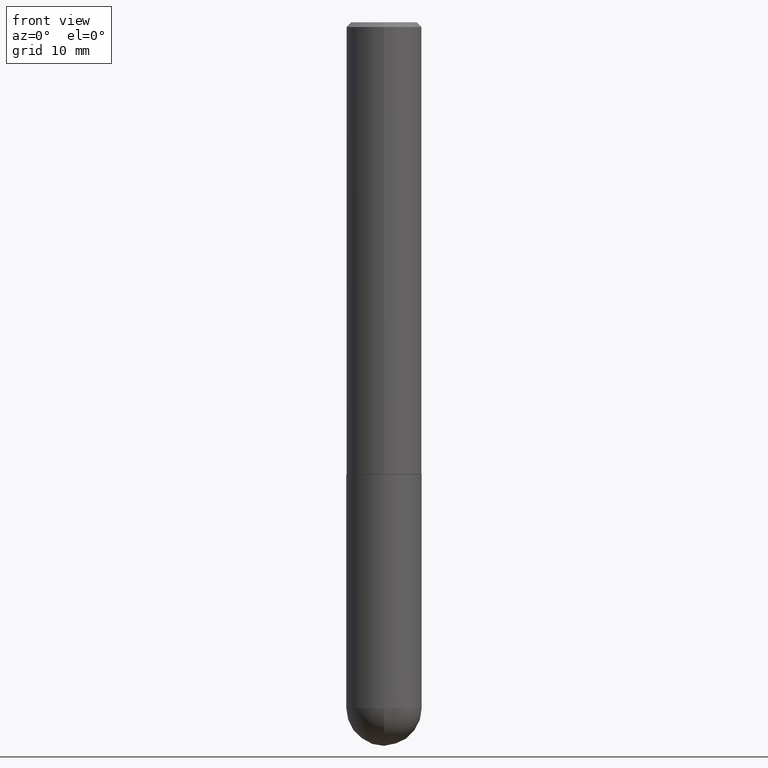
[diagram: clean part render]
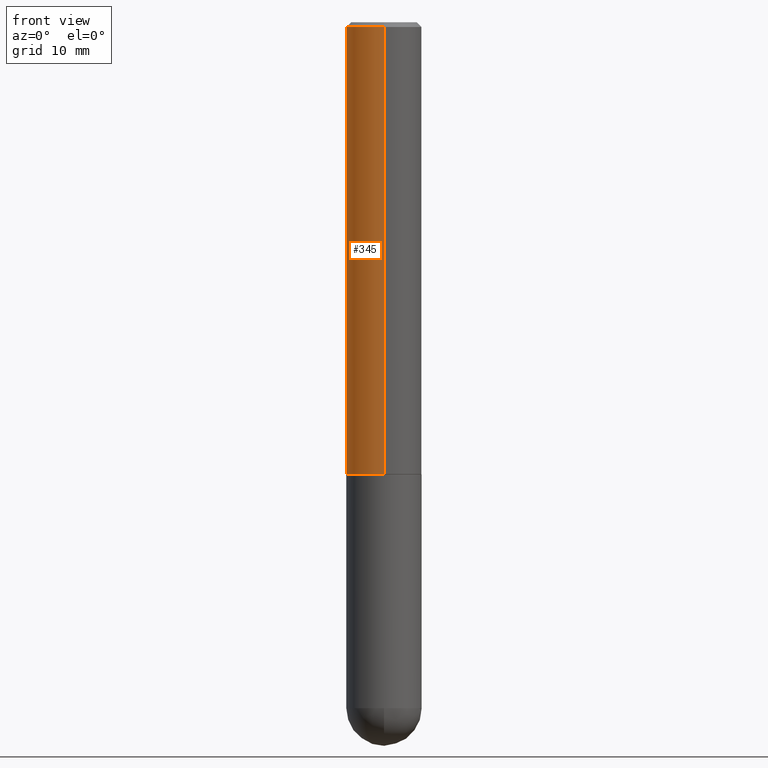
[diagram: same view with one face highlighted and labeled with its STEP entity id]
A machine part, front view. The second image highlights one B-rep face of the part: STEP entity #345.
In plain terms, the highlighted cylindrical surface (partial cylindrical patch) has radius 3.9688 mm, axis along (-0, 0, 1).
Its self-contained STEP definition (entity closure, byte-faithful):
#3 = DIRECTION ( 'NONE',  ( -6.982962677686265922E-15, -1.000000000000000000, 3.492105978576687648E-15 ) ) ;
#12 = AXIS2_PLACEMENT_3D ( 'NONE', #119, #138, #69 ) ;
#17 = CARTESIAN_POINT ( 'NONE',  ( 1.110223024625157329E-15, 0.1562500000000001388, -5.456415591526079257E-16 ) ) ;
#29 = CIRCLE ( 'NONE', #335, 0.1562500000000000000 ) ;
#49 = EDGE_CURVE ( 'NONE', #97, #223, #273, .T. ) ;
#55 = ORIENTED_EDGE ( 'NONE', *, *, #49, .T. ) ;
#56 = DIRECTION ( 'NONE',  ( -2.445032622590504256E-29, 3.492105978576687648E-15, 1.000000000000000000 ) ) ;
#63 = VERTEX_POINT ( 'NONE', #406 ) ;
#64 = EDGE_CURVE ( 'NONE', #369, #97, #198, .T. ) ;
#67 = CARTESIAN_POINT ( 'NONE',  ( 0.000000000000000000, 0.000000000000000000, 0.000000000000000000 ) ) ;
#69 = DIRECTION ( 'NONE',  ( -6.982962677686265922E-15, -1.000000000000000000, 3.496765431890251398E-15 ) ) ;
#85 = CARTESIAN_POINT ( 'NONE',  ( -1.091087918388479962E-15, -0.1562500000000001388, 5.456415591526079257E-16 ) ) ;
#92 = ORIENTED_EDGE ( 'NONE', *, *, #226, .F. ) ;
#95 = VECTOR ( 'NONE', #275, 39.37007874015748143 ) ;
#97 = VERTEX_POINT ( 'NONE', #177 ) ;
#99 = ORIENTED_EDGE ( 'NONE', *, *, #64, .T. ) ;
#119 = CARTESIAN_POINT ( 'NONE',  ( 4.581991134734604485E-29, -6.544206603852712761E-15, -1.874000000000000110 ) ) ;
#133 = VECTOR ( 'NONE', #282, 39.37007874015748143 ) ;
#135 = FACE_OUTER_BOUND ( 'NONE', #366, .T. ) ;
#138 = DIRECTION ( 'NONE',  ( -2.445032622590504256E-29, 3.492105978576687648E-15, 1.000000000000000000 ) ) ;
#161 = DIRECTION ( 'NONE',  ( -2.445032622590504256E-29, 3.492105978576687648E-15, 1.000000000000000000 ) ) ;
#177 = CARTESIAN_POINT ( 'NONE',  ( -1.091087918388434997E-15, -0.1562500000000068001, -1.873999999999999444 ) ) ;
#183 = DIRECTION ( 'NONE',  ( -6.982962677686265133E-15, -1.000000000000000000, 3.496765431890256920E-15 ) ) ;
#184 = CARTESIAN_POINT ( 'NONE',  ( 4.890065245181016640E-31, -6.984211957153386487E-17, -0.02000000000000003511 ) ) ;
#189 = CARTESIAN_POINT ( 'NONE',  ( 1.110223024625180601E-15, 0.1562499999999936995, -1.874000000000000554 ) ) ;
#198 = CIRCLE ( 'NONE', #12, 0.1562500000000002498 ) ;
#223 = VERTEX_POINT ( 'NONE', #373 ) ;
#225 = AXIS2_PLACEMENT_3D ( 'NONE', #67, #161, #3 ) ;
#226 = EDGE_CURVE ( 'NONE', #369, #63, #304, .T. ) ;
#227 = EDGE_CURVE ( 'NONE', #63, #223, #29, .T. ) ;
#273 = LINE ( 'NONE', #85, #133 ) ;
#275 = DIRECTION ( 'NONE',  ( -2.445032622590504256E-29, 3.492105978576687648E-15, 1.000000000000000000 ) ) ;
#282 = DIRECTION ( 'NONE',  ( -2.445032622590504256E-29, 3.492105978576687648E-15, 1.000000000000000000 ) ) ;
#304 = LINE ( 'NONE', #17, #95 ) ;
#325 = ORIENTED_EDGE ( 'NONE', *, *, #227, .F. ) ;
#335 = AXIS2_PLACEMENT_3D ( 'NONE', #184, #56, #183 ) ;
#345 = ADVANCED_FACE ( 'NONE', ( #135 ), #348, .T. ) ;
#348 = CYLINDRICAL_SURFACE ( 'NONE', #225, 0.1562500000000001388 ) ;
#366 = EDGE_LOOP ( 'NONE', ( #92, #99, #55, #325 ) ) ;
#369 = VERTEX_POINT ( 'NONE', #189 ) ;
#373 = CARTESIAN_POINT ( 'NONE',  ( -1.071952812151801215E-15, -0.1562500000000000833, -0.01999999999999948694 ) ) ;
#406 = CARTESIAN_POINT ( 'NONE',  ( 1.091087918388479568E-15, 0.1562499999999999445, -0.02000000000000057981 ) ) ;